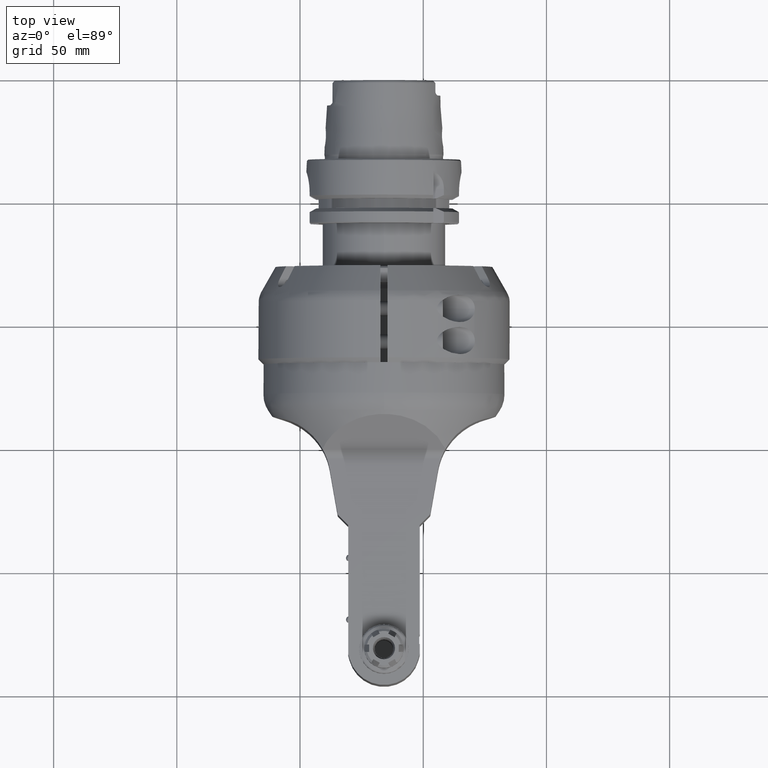
[diagram: clean part render]
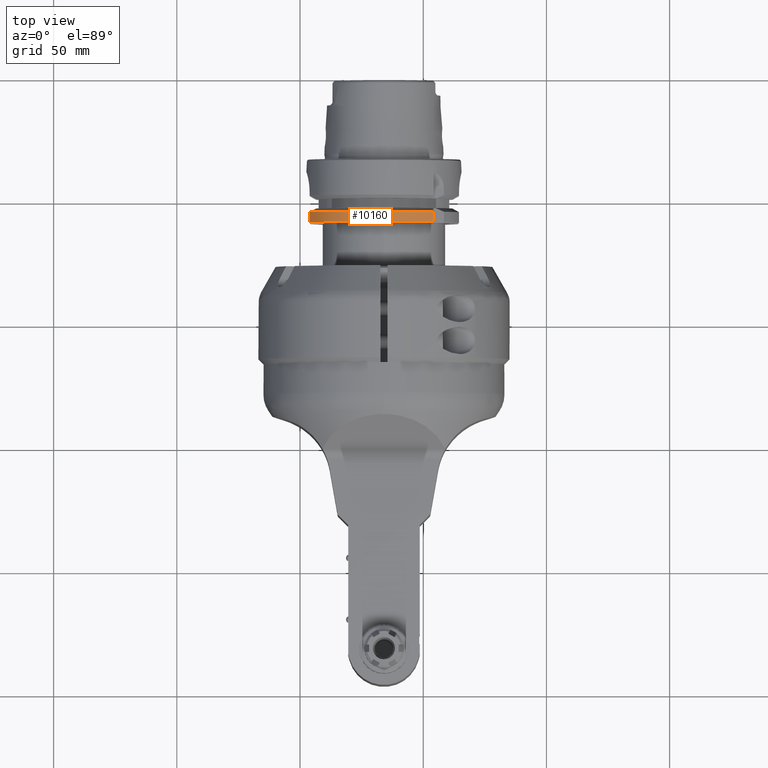
[diagram: same view with one face highlighted and labeled with its STEP entity id]
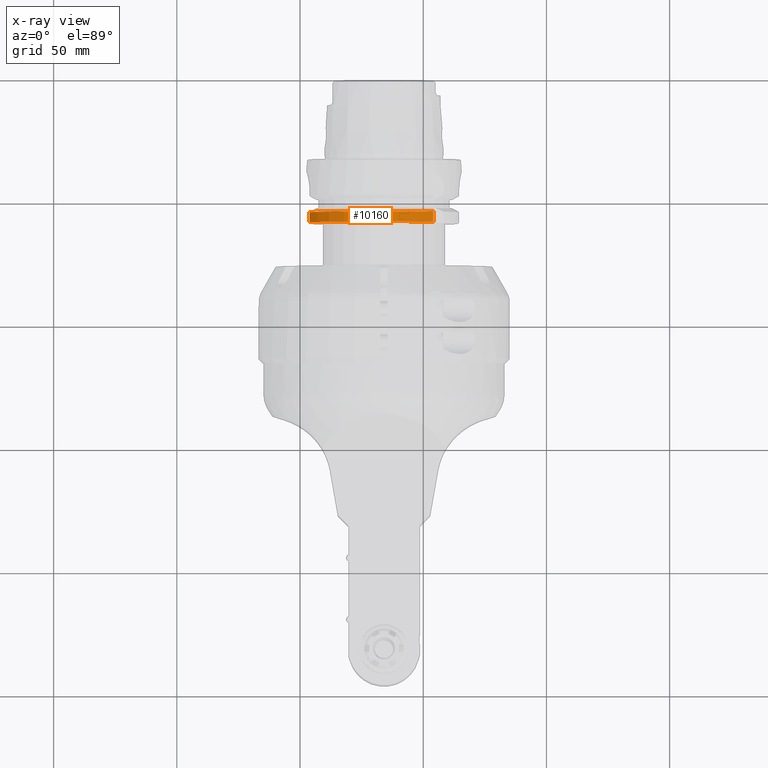
[diagram: x-ray of the same camera — body ghosted, the highlighted face saturated]
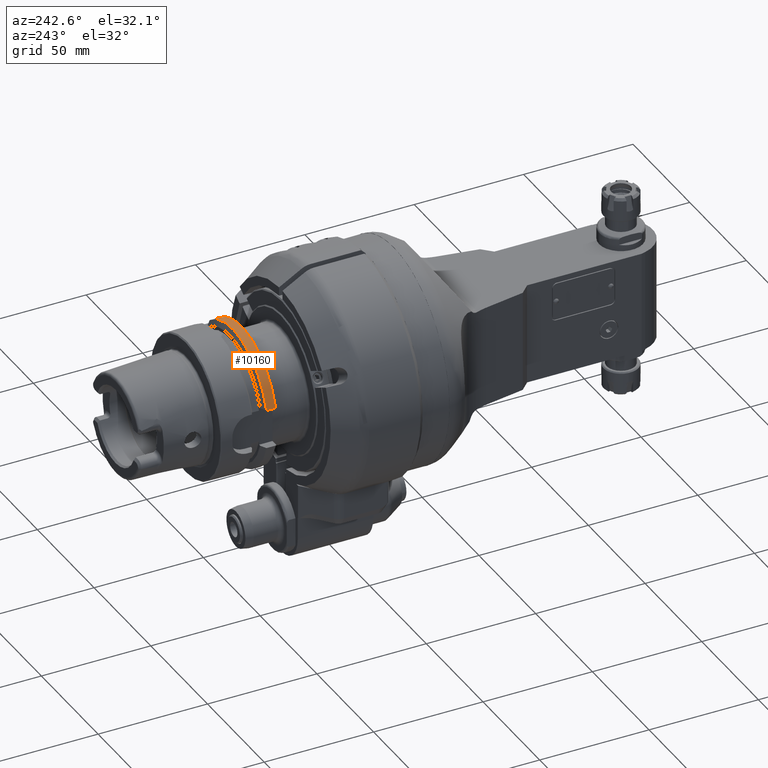
[diagram: same view with one face highlighted and labeled with its STEP entity id]
A machine part, top view. The second image highlights one B-rep face of the part: STEP entity #10160.
The next image is the same camera in x-ray: the body ghosted, the highlighted face saturated — about 0% of this face is hidden behind the body in this view.
A second angle (auxiliary view) of the same face is appended — the face is thin or edge-on in the first view.
In plain terms, the highlighted cylindrical surface (partial cylindrical patch) has radius 31.5 mm, axis along (0, 1, 0).
Its self-contained STEP definition (entity closure, byte-faithful):
#682=CYLINDRICAL_SURFACE('',#11127,31.5);
#1041=CIRCLE('',#11122,31.5);
#1043=CIRCLE('',#11126,31.5);
#1594=FACE_OUTER_BOUND('',#2261,.T.);
#2261=EDGE_LOOP('',(#8231,#8232,#8233,#8234));
#2968=LINE('',#17275,#3679);
#2971=LINE('',#17306,#3682);
#3679=VECTOR('',#13308,10.);
#3682=VECTOR('',#13319,4.12249751389202);
#4560=VERTEX_POINT('',#17270);
#4561=VERTEX_POINT('',#17274);
#4562=VERTEX_POINT('',#17278);
#4563=VERTEX_POINT('',#17291);
#5845=EDGE_CURVE('',#4561,#4560,#2968,.T.);
#5847=EDGE_CURVE('',#4561,#4562,#1041,.T.);
#5852=EDGE_CURVE('',#4563,#4562,#2971,.T.);
#5854=EDGE_CURVE('',#4563,#4560,#1043,.T.);
#8231=ORIENTED_EDGE('',*,*,#5845,.T.);
#8232=ORIENTED_EDGE('',*,*,#5854,.F.);
#8233=ORIENTED_EDGE('',*,*,#5852,.T.);
#8234=ORIENTED_EDGE('',*,*,#5847,.F.);
#10160=ADVANCED_FACE('',(#1594),#682,.T.);
#11122=AXIS2_PLACEMENT_3D('',#17279,#13313,#13314);
#11126=AXIS2_PLACEMENT_3D('',#17309,#13324,#13325);
#11127=AXIS2_PLACEMENT_3D('',#17310,#13326,#13327);
#13308=DIRECTION('',(0.,1.,0.));
#13313=DIRECTION('center_axis',(0.,-1.,0.));
#13314=DIRECTION('ref_axis',(0.,0.,1.));
#13319=DIRECTION('',(-3.05878025407898E-8,-0.999999999999994,-1.02594597984899E-7));
#13324=DIRECTION('center_axis',(0.,1.,0.));
#13325=DIRECTION('ref_axis',(0.,0.,1.));
#13326=DIRECTION('center_axis',(0.,1.,0.));
#13327=DIRECTION('ref_axis',(0.,0.,1.));
#17270=CARTESIAN_POINT('',(19.9999999996526,61.6225009247006,24.3361870480639));
#17274=CARTESIAN_POINT('',(20.0000001014629,57.5000000410875,24.3361869988175));
#17275=CARTESIAN_POINT('',(20.,54.9,24.3361870472759));
#17278=CARTESIAN_POINT('',(-30.18691769625,57.5,9.));
#17279=CARTESIAN_POINT('Origin',(1.347113091385E-14,57.5,0.));
#17291=CARTESIAN_POINT('',(-30.1869175352254,61.6225009024752,9.00000062994275));
#17306=CARTESIAN_POINT('',(-30.18691757015,61.62249751389,9.000000422946));
#17309=CARTESIAN_POINT('Origin',(1.347113091385E-14,61.62250092524,0.));
#17310=CARTESIAN_POINT('Origin',(1.347113091385E-14,54.9,0.));